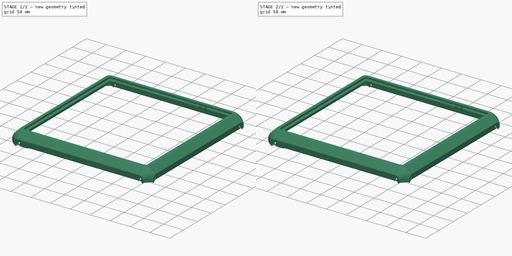
[diagram: build sequence overview — one tinted view per stage of 2, left to right]
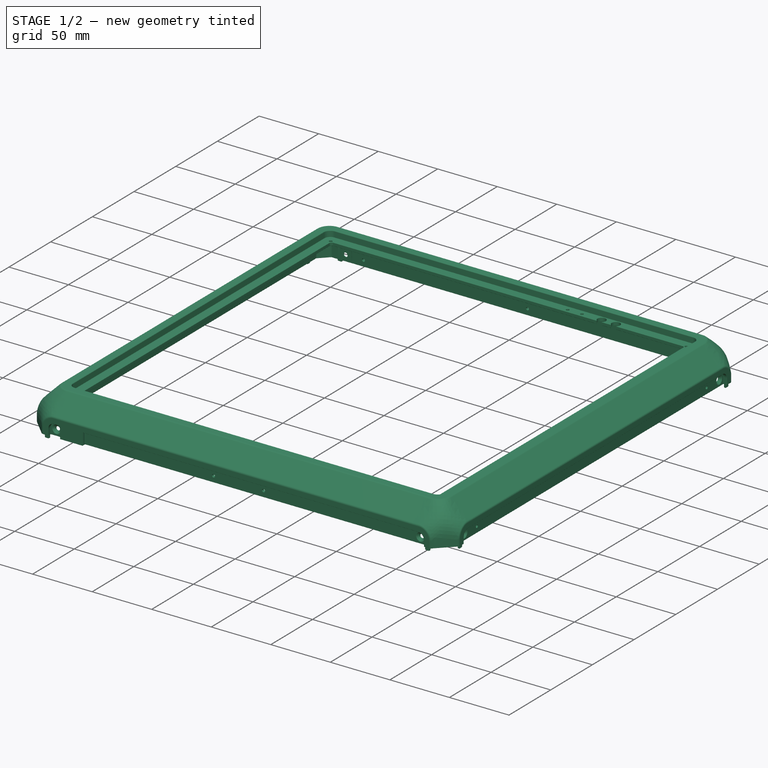
[diagram: stage 1 of 2 — iso view after this stage's code; geometry added in this stage tinted green]
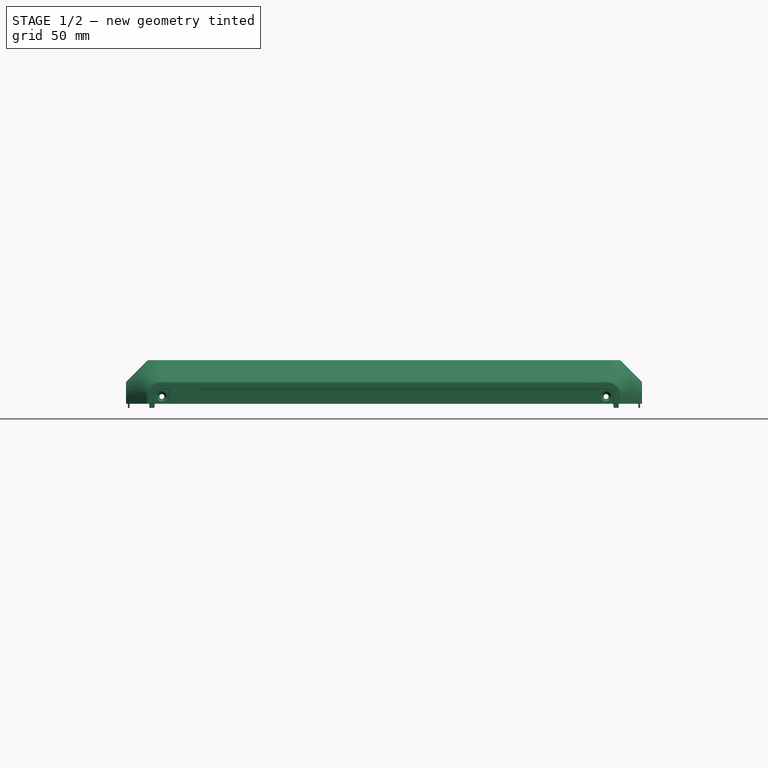
[diagram: stage 1 of 2 — front view after this stage's code; geometry added in this stage tinted green]
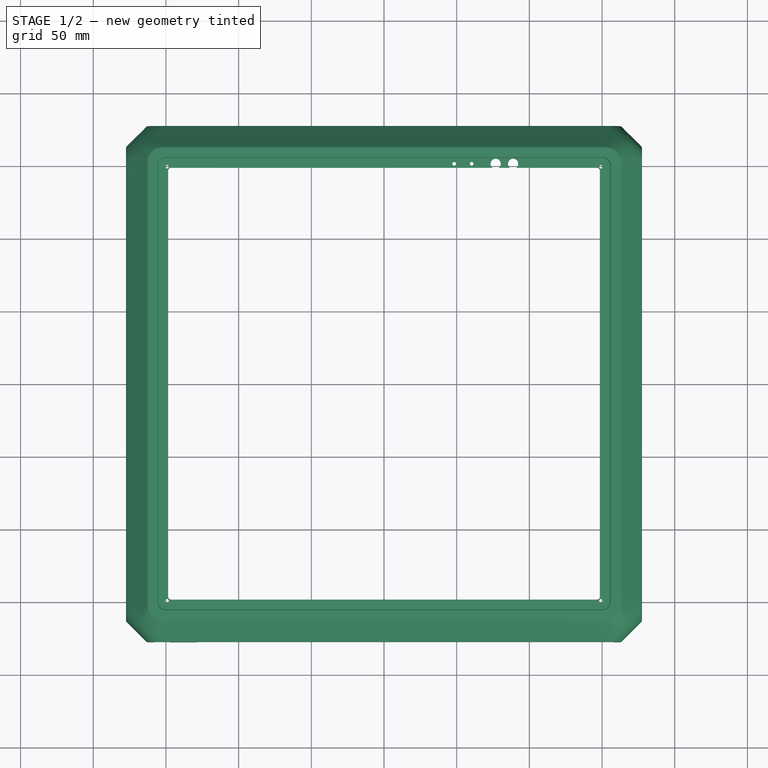
[diagram: stage 1 of 2 — top view after this stage's code; geometry added in this stage tinted green]
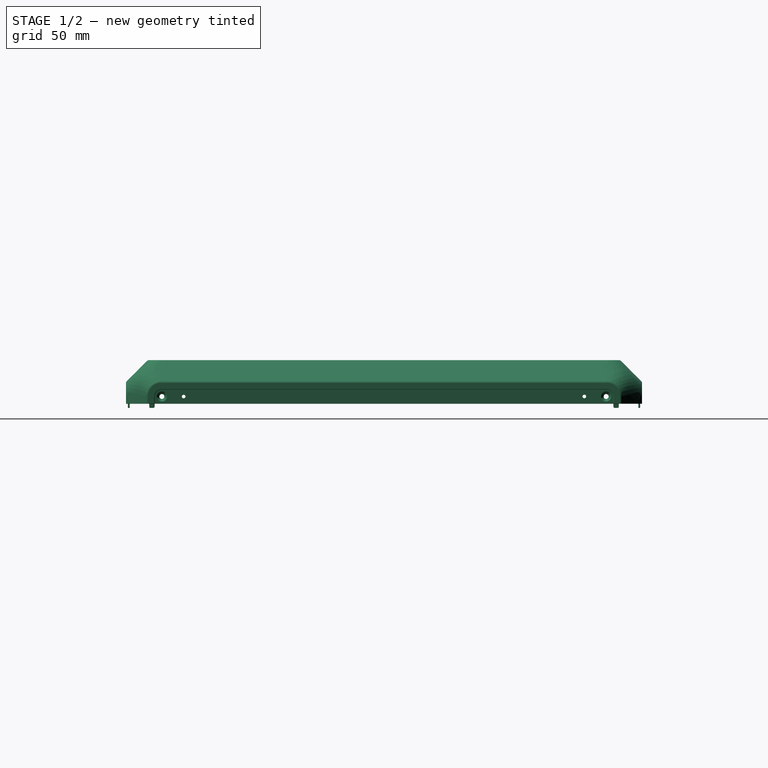
[diagram: stage 1 of 2 — right view after this stage's code; geometry added in this stage tinted green]
FCSTD DOCUMENT  (FreeCAD 1.0R38641 +468 (Git))
Label: cad_top_frame
License: All rights reserved
LicenseURL: https://en.wikipedia.org/wiki/All_rights_reserved
objects: PartDesign::Line×8, Part::Feature×1, PartDesign::FeatureBase×1, Sketcher::SketchObject×1, PartDesign::Pocket×1, PartDesign::Body×1
note: 17 computed .brp shape members not serialized (recipe doc carries the construction recipe); baked Part::Feature solids carry a one-line shape summary decoded from their .brp

FEATURE [Part::Feature] Part__Feature  label="step"
  shape: bbox 365.1 x 369.8 x 38.23 mm, 1284 faces (baked)
FEATURE [PartDesign::FeatureBase] BaseFeature
  BaseFeature = -> Part__Feature
  Suppressed = false
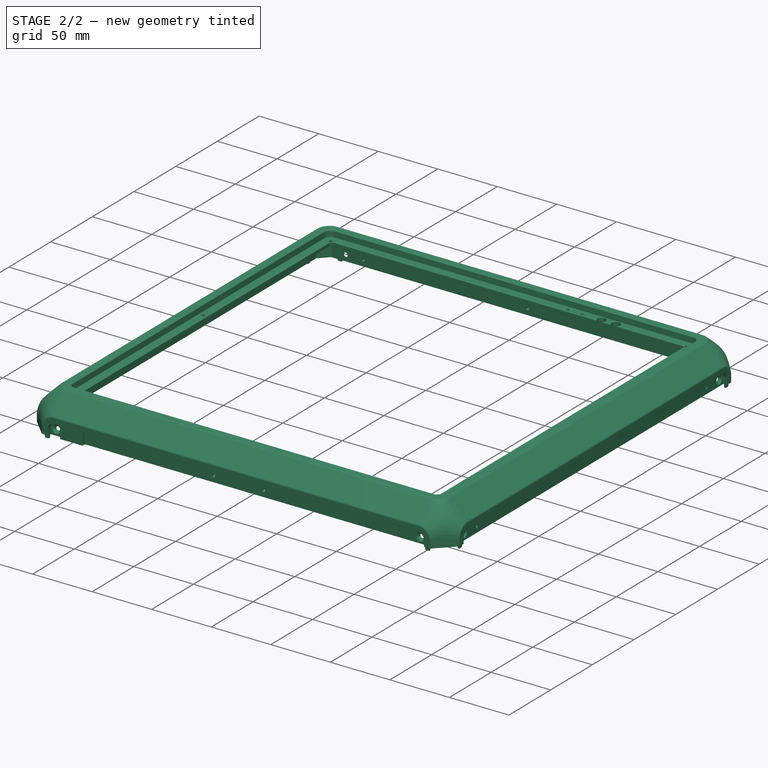
[diagram: stage 2 of 2 — iso view after this stage's code; geometry added in this stage tinted green]
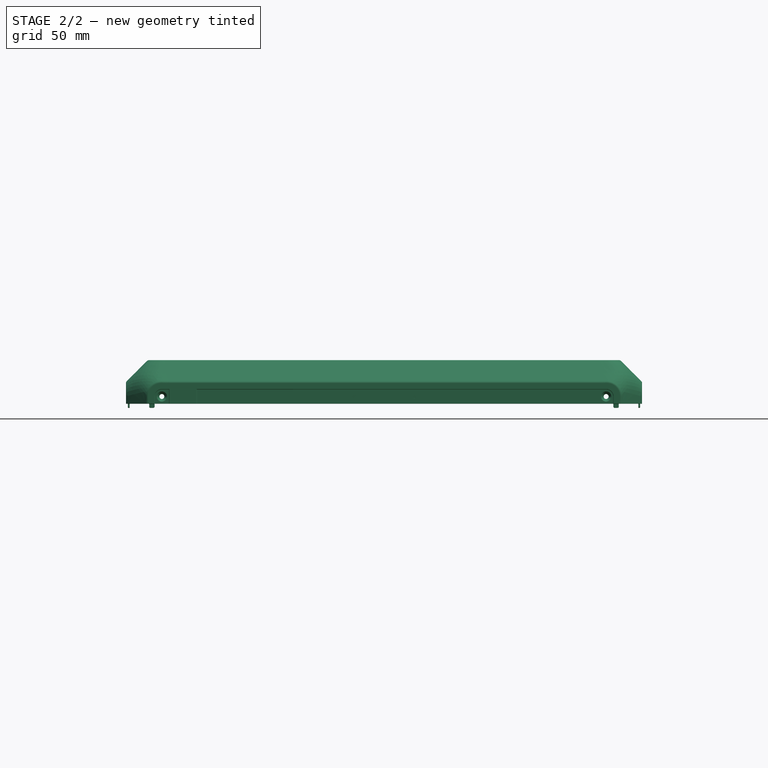
[diagram: stage 2 of 2 — front view after this stage's code; geometry added in this stage tinted green]
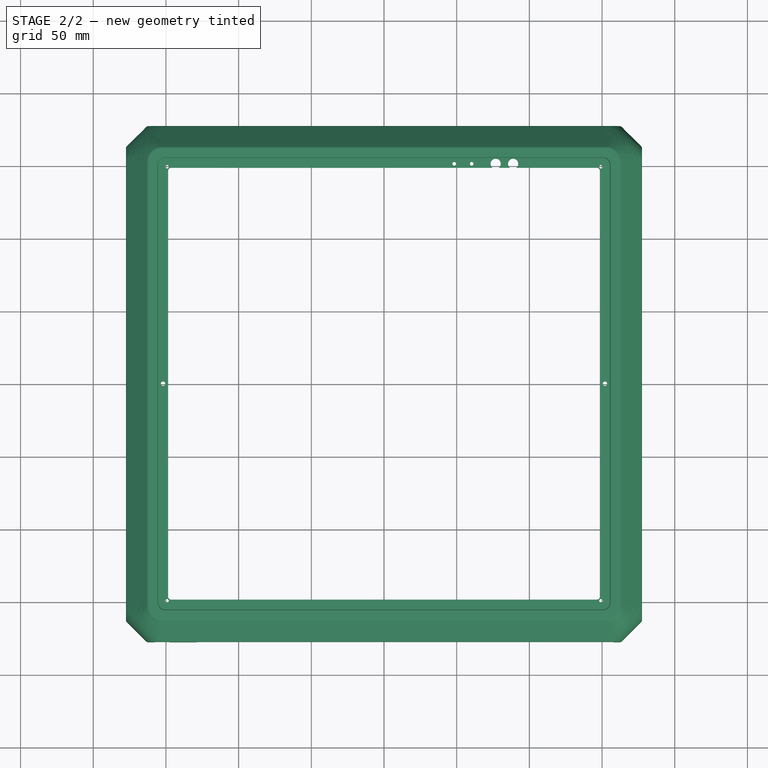
[diagram: stage 2 of 2 — top view after this stage's code; geometry added in this stage tinted green]
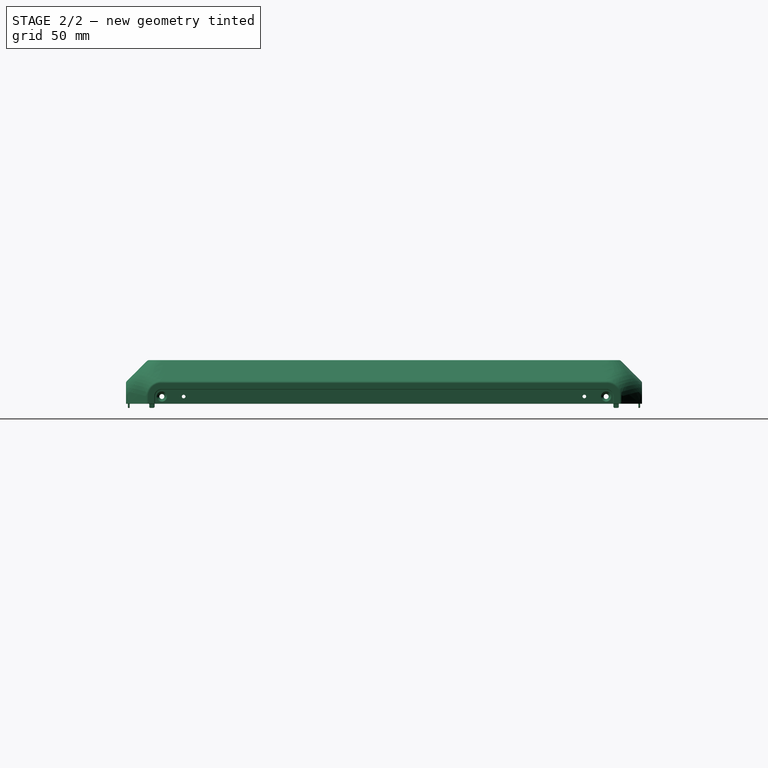
[diagram: stage 2 of 2 — right view after this stage's code; geometry added in this stage tinted green]
FEATURE [Sketcher::SketchObject] Sketch
  ArcFitTolerance = 0
  AttachmentSupport = -> [BaseFeature]
  ExternalGeometry = -> [BaseFeature]
  FullyConstrained = true
  MakeInternals = false
  MapMode = 5
  Placement = pos=(0,0,439.5) rot=(0,0,1;0rad)
  sketch-geometry (6):
    g0: LineSegment [constr] StartX=-149.307 StartY=149.307 StartZ=0 EndX=149.307 EndY=149.307 EndZ=0
    g1: LineSegment [constr] StartX=149.307 StartY=149.307 StartZ=0 EndX=149.307 EndY=-149.307 EndZ=0
    g2: LineSegment [constr] StartX=149.307 StartY=-149.307 StartZ=0 EndX=-149.307 EndY=-149.307 EndZ=0
    g3: LineSegment [constr] StartX=-149.307 StartY=-149.307 StartZ=0 EndX=-149.307 EndY=149.307 EndZ=0
    g4: Circle CenterX=152 CenterY=0 CenterZ=0 NormalX=0 NormalY=0 NormalZ=1 AngleXU=0 Radius=1.5
    g5: Circle CenterX=-152 CenterY=0 CenterZ=0 NormalX=0 NormalY=0 NormalZ=1 AngleXU=0 Radius=1.5
  constraints (16):
    c: Coincident(g0,g1)
    c: Coincident(g1,g2)
    c: Coincident(g2,g3)
    c: Coincident(g3,g0)
    c: Horizontal(g0)
    c: Horizontal(g2)
    c: Vertical(g1)
    c: Vertical(g3)
    c: Coincident(g0,g-3)
    c: Coincident(g1,g-5)
    c: PointOnObject(g4,g-1)
    c: PointOnObject(g5,g-1)
    c: Distance(g5,g-7) = 3.5
    c: Equal(g5,g4)
    c: Radius(g4) = 1.5
    c: Distance(g4,g-8) = 3.5
FEATURE [PartDesign::Pocket] Pocket
  BaseFeature = -> BaseFeature
  Direction = (0,0,-1)
  Length = 5
  Length2 = 5
  Profile = -> Sketch
  ReferenceAxis = -> Sketch [N_Axis]
  Suppressed = false
  Type = 0
FEATURE [PartDesign::Line] HoleAxis_1  label="HoleAxis_motor_right_back"
  AttacherType = Attacher::AttachEngineLine
  AttachmentSupport = -> [Pocket]
  Length = 4.79083
  MapMode = 19
  Placement = pos=(152.8,172.15,419.5) rot=(0,-0.707107,0.707107;3.14159rad)
  ResizeMode = 1
FEATURE [PartDesign::Line] HoleAxis_2  label="HoleAxis_motor_left_back"
  AttacherType = Attacher::AttachEngineLine
  AttachmentSupport = -> [Pocket]
  Length = 4.79083
  MapMode = 19
  Placement = pos=(-152.8,172.15,419.5) rot=(1,0,0;1.5708rad)
  ResizeMode = 1
FEATURE [PartDesign::Line] HoleAxis_3  label="HoleAxis_motor_right_right"
  AttacherType = Attacher::AttachEngineLine
  AttachmentSupport = -> [Pocket]
  Length = 4.79083
  MapMode = 19
  Placement = pos=(172.15,152.8,419.5) rot=(-0.57735,-0.57735,0.57735;2.0944rad)
  ResizeMode = 1
FEATURE [PartDesign::Line] HoleAxis_4  label="HoleAxis_motor_left_left"
  AttacherType = Attacher::AttachEngineLine
  AttachmentSupport = -> [Pocket]
  Length = 4.79083
  MapMode = 19
  Placement = pos=(-172.15,152.8,419.5) rot=(0.57735,0.57735,0.57735;2.0944rad)
  ResizeMode = 1
FEATURE [PartDesign::Line] HoleAxis_5  label="HoleAxis_front_idler_right_front"
  AttacherType = Attacher::AttachEngineLine
  AttachmentSupport = -> [Pocket]
  Length = 4.79083
  MapMode = 19
  Placement = pos=(152.8,-172.15,419.5) rot=(0,0.707107,0.707107;3.14159rad)
  ResizeMode = 1
FEATURE [PartDesign::Line] HoleAxis_6  label="HoleAxis_front_idler_left_front"
  AttacherType = Attacher::AttachEngineLine
  AttachmentSupport = -> [Pocket]
  Length = 4.79083
  MapMode = 19
  Placement = pos=(-152.8,-172.15,419.5) rot=(-1,0,0;1.5708rad)
  ResizeMode = 1
FEATURE [PartDesign::Line] HoleAxis_7  label="HoleAxis_support_right"
  AttacherType = Attacher::AttachEngineLine
  AttachmentSupport = -> [Pocket]
  Length = 4.2272
  MapMode = 19
  Placement = pos=(152,0,436.9) rot=(0,0,1;0rad)
  ResizeMode = 1
FEATURE [PartDesign::Line] HoleAxis_8  label="HoleAxis_support_left"
  AttacherType = Attacher::AttachEngineLine
  AttachmentSupport = -> [Pocket]
  Length = 4.2272
  MapMode = 19
  Placement = pos=(-152,0,436.9) rot=(0,0,1;0rad)
  ResizeMode = 1
FEATURE [PartDesign::Body] Body  label="cad_top_frame"
  AllowCompound = false
  BaseFeature = -> Part__Feature
  Group = -> [BaseFeature,Sketch,Pocket,HoleAxis_1,HoleAxis_2,HoleAxis_3,HoleAxis_4,HoleAxis_5,HoleAxis_6,HoleAxis_7,HoleAxis_8]
  Origin = -> Origin
  Placement = pos=(177.5,177.5,-414.5) rot=(0,0,1;0rad)
  Tip = -> Pocket
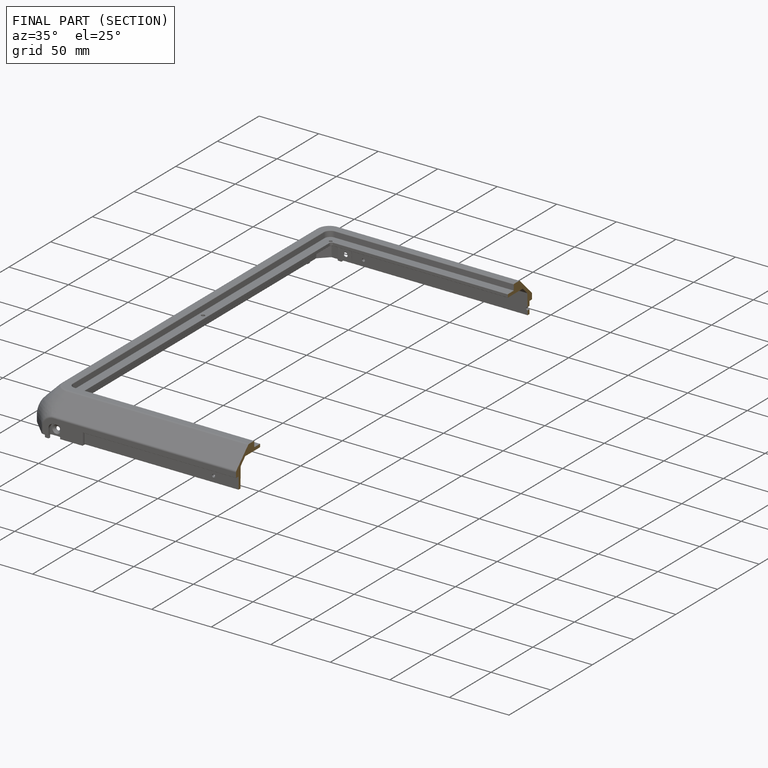
[diagram: finished part — half-section view (interior)]
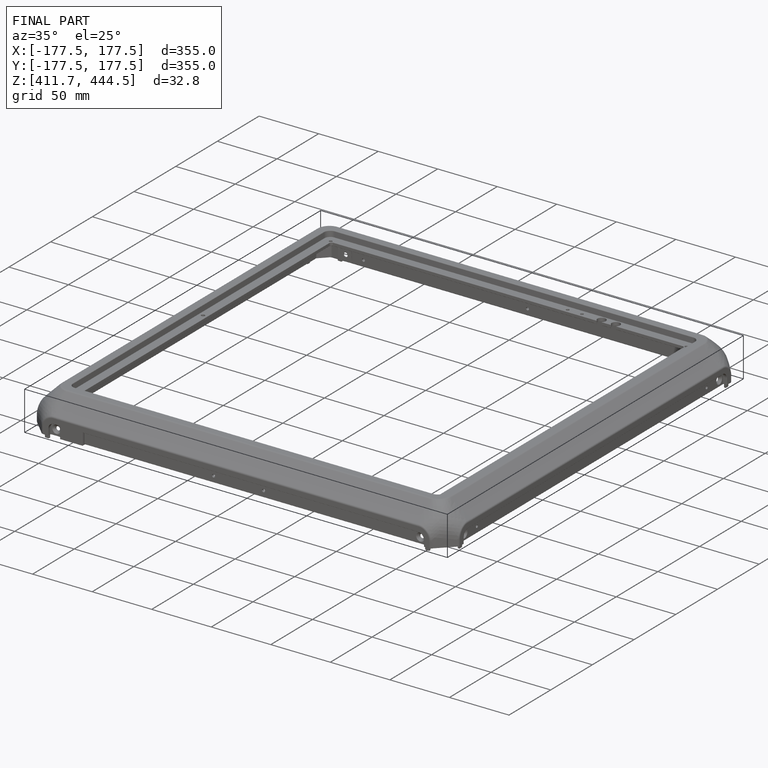
[diagram: finished part — iso view with bounding-box wireframe]
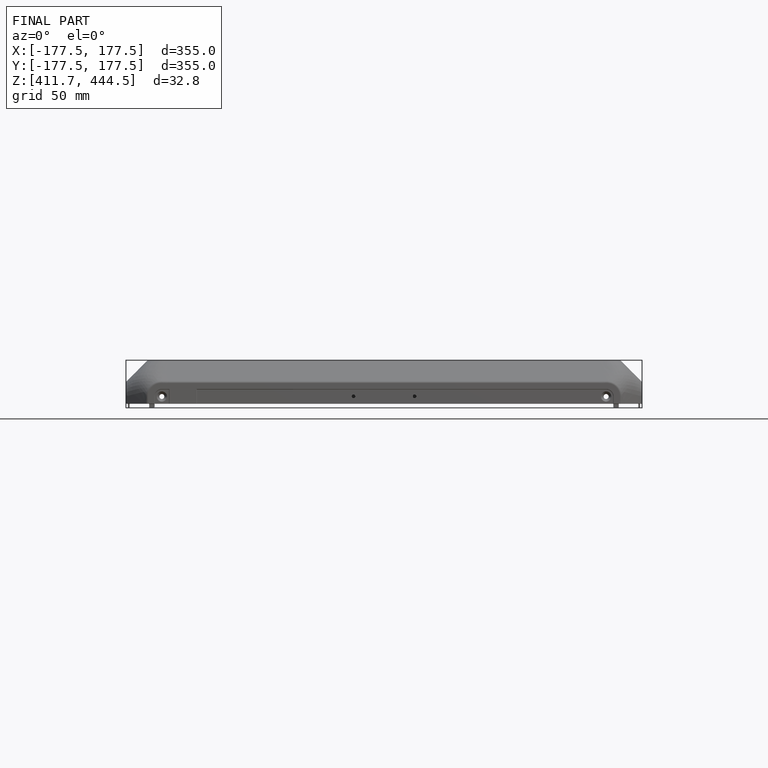
[diagram: finished part — front view with bounding-box wireframe]
